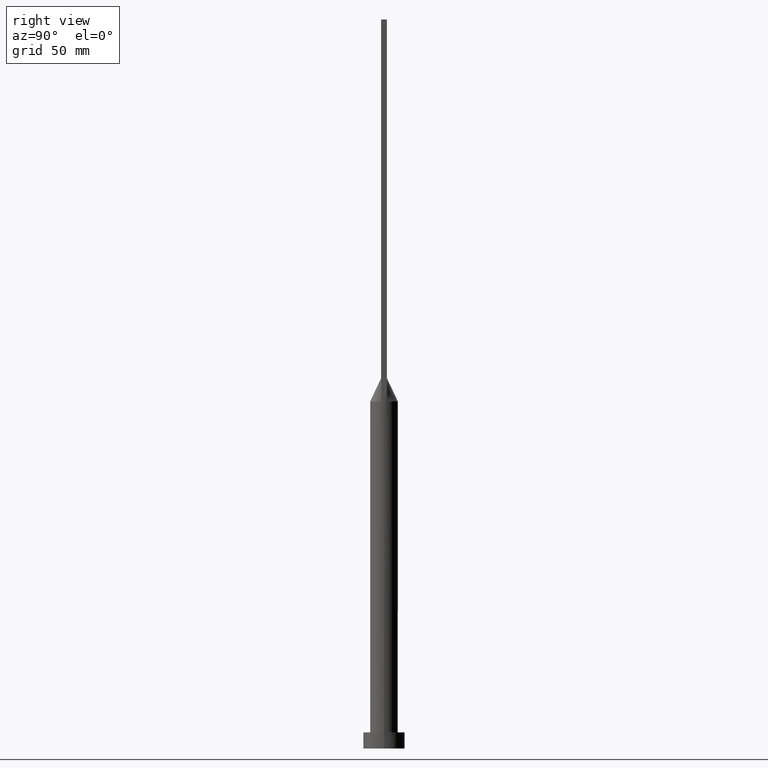
[diagram: clean part render]
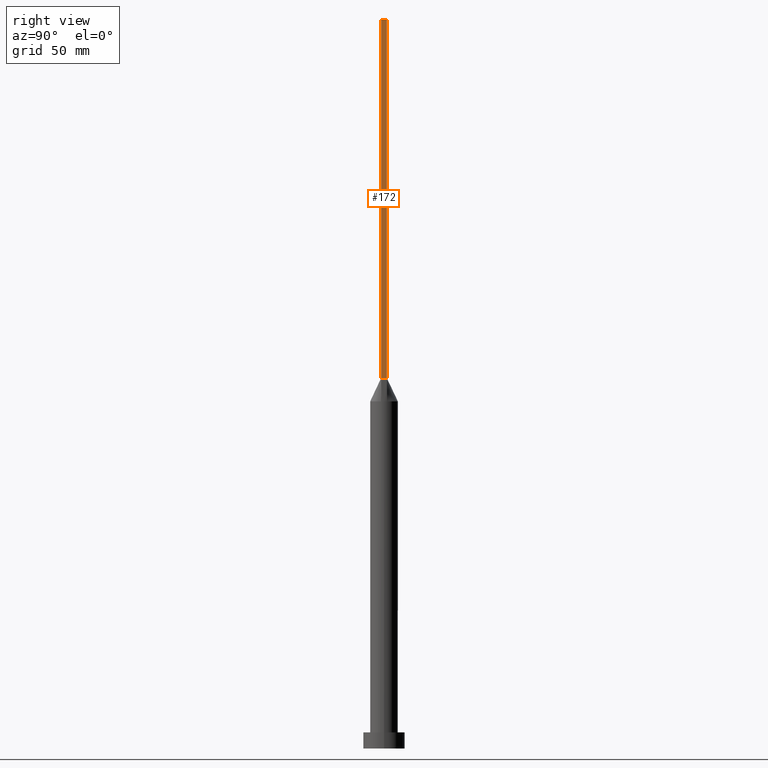
[diagram: same view with one face highlighted and labeled with its STEP entity id]
A machine part, right view. The second image highlights one B-rep face of the part: STEP entity #172.
In plain terms, the highlighted planar face has unit normal (-1, 0, 0).
Its self-contained STEP definition (entity closure, byte-faithful):
#21 = VECTOR ( 'NONE', #221, 1000.000000000000000 ) ;
#22 = CARTESIAN_POINT ( 'NONE',  ( 5.750000000000000000, 1.250000000000000222, 160.0000000000000000 ) ) ;
#23 = ORIENTED_EDGE ( 'NONE', *, *, #42, .F. ) ;
#25 = PLANE ( 'NONE',  #562 ) ;
#42 = EDGE_CURVE ( 'NONE', #318, #141, #302, .T. ) ;
#68 = FACE_OUTER_BOUND ( 'NONE', #159, .T. ) ;
#108 = VECTOR ( 'NONE', #167, 1000.000000000000000 ) ;
#122 = LINE ( 'NONE', #310, #21 ) ;
#133 = CARTESIAN_POINT ( 'NONE',  ( 5.750000000000000000, -1.249999999999999778, 315.0000000000000000 ) ) ;
#141 = VERTEX_POINT ( 'NONE', #521 ) ;
#159 = EDGE_LOOP ( 'NONE', ( #431, #405, #23, #178 ) ) ;
#165 = LINE ( 'NONE', #22, #587 ) ;
#167 = DIRECTION ( 'NONE',  ( -0.000000000000000000, -0.000000000000000000, -1.000000000000000000 ) ) ;
#172 = ADVANCED_FACE ( 'NONE', ( #68 ), #25, .F. ) ;
#178 = ORIENTED_EDGE ( 'NONE', *, *, #321, .T. ) ;
#200 = DIRECTION ( 'NONE',  ( 0.000000000000000000, 0.000000000000000000, 1.000000000000000000 ) ) ;
#221 = DIRECTION ( 'NONE',  ( -0.000000000000000000, -0.000000000000000000, -1.000000000000000000 ) ) ;
#222 = DIRECTION ( 'NONE',  ( 0.000000000000000000, 1.000000000000000000, 0.000000000000000000 ) ) ;
#268 = EDGE_CURVE ( 'NONE', #549, #500, #165, .T. ) ;
#271 = CARTESIAN_POINT ( 'NONE',  ( 5.750000000000000000, 1.250000000000000222, 160.0000000000000000 ) ) ;
#283 = CARTESIAN_POINT ( 'NONE',  ( 5.750000000000000000, -1.249999999999999778, 160.0000000000000000 ) ) ;
#302 = LINE ( 'NONE', #133, #536 ) ;
#310 = CARTESIAN_POINT ( 'NONE',  ( 5.750000000000000000, 1.250000000000000222, 315.0000000000000000 ) ) ;
#313 = EDGE_CURVE ( 'NONE', #141, #500, #122, .T. ) ;
#318 = VERTEX_POINT ( 'NONE', #398 ) ;
#321 = EDGE_CURVE ( 'NONE', #318, #549, #547, .T. ) ;
#379 = DIRECTION ( 'NONE',  ( -0.000000000000000000, 1.000000000000000000, -0.000000000000000000 ) ) ;
#398 = CARTESIAN_POINT ( 'NONE',  ( 5.750000000000000000, -1.249999999999999778, 315.0000000000000000 ) ) ;
#405 = ORIENTED_EDGE ( 'NONE', *, *, #313, .F. ) ;
#431 = ORIENTED_EDGE ( 'NONE', *, *, #268, .T. ) ;
#477 = CARTESIAN_POINT ( 'NONE',  ( 5.750000000000000000, -1.249999999999999778, 315.0000000000000000 ) ) ;
#495 = CARTESIAN_POINT ( 'NONE',  ( 5.750000000000000000, -1.249999999999999778, 315.0000000000000000 ) ) ;
#500 = VERTEX_POINT ( 'NONE', #271 ) ;
#521 = CARTESIAN_POINT ( 'NONE',  ( 5.750000000000000000, 1.250000000000000222, 315.0000000000000000 ) ) ;
#530 = DIRECTION ( 'NONE',  ( -1.000000000000000000, 0.000000000000000000, 0.000000000000000000 ) ) ;
#536 = VECTOR ( 'NONE', #222, 1000.000000000000000 ) ;
#547 = LINE ( 'NONE', #495, #108 ) ;
#549 = VERTEX_POINT ( 'NONE', #283 ) ;
#562 = AXIS2_PLACEMENT_3D ( 'NONE', #477, #530, #200 ) ;
#587 = VECTOR ( 'NONE', #379, 1000.000000000000000 ) ;